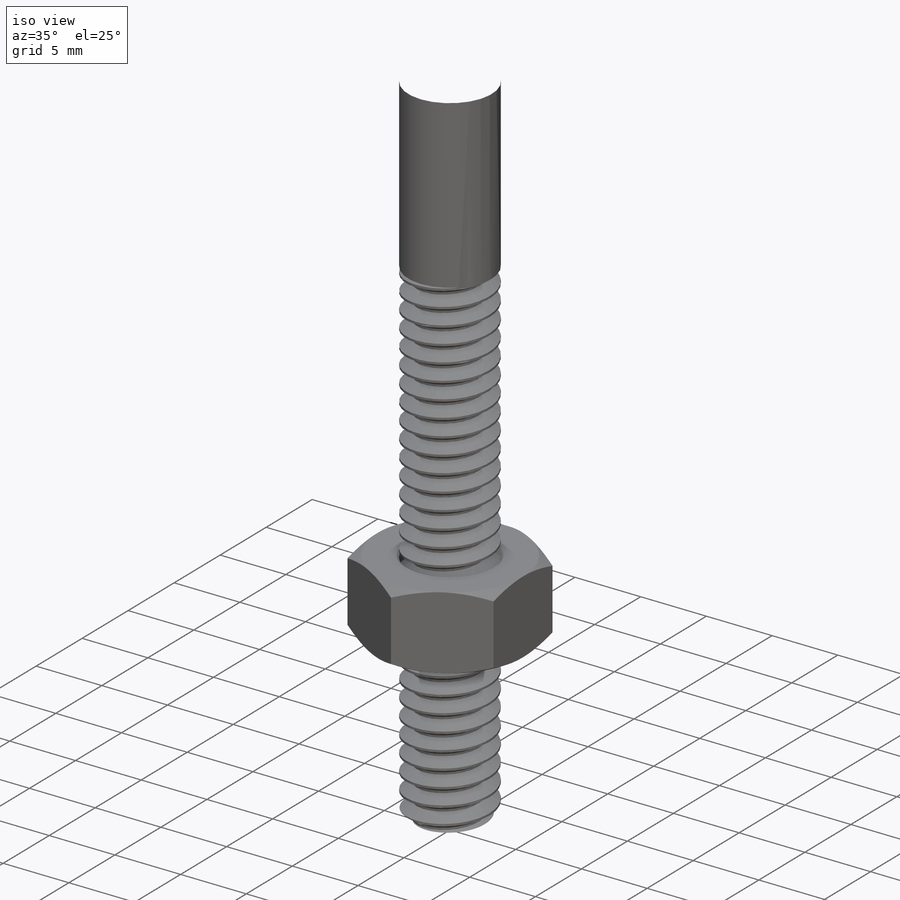
[diagram: iso view]
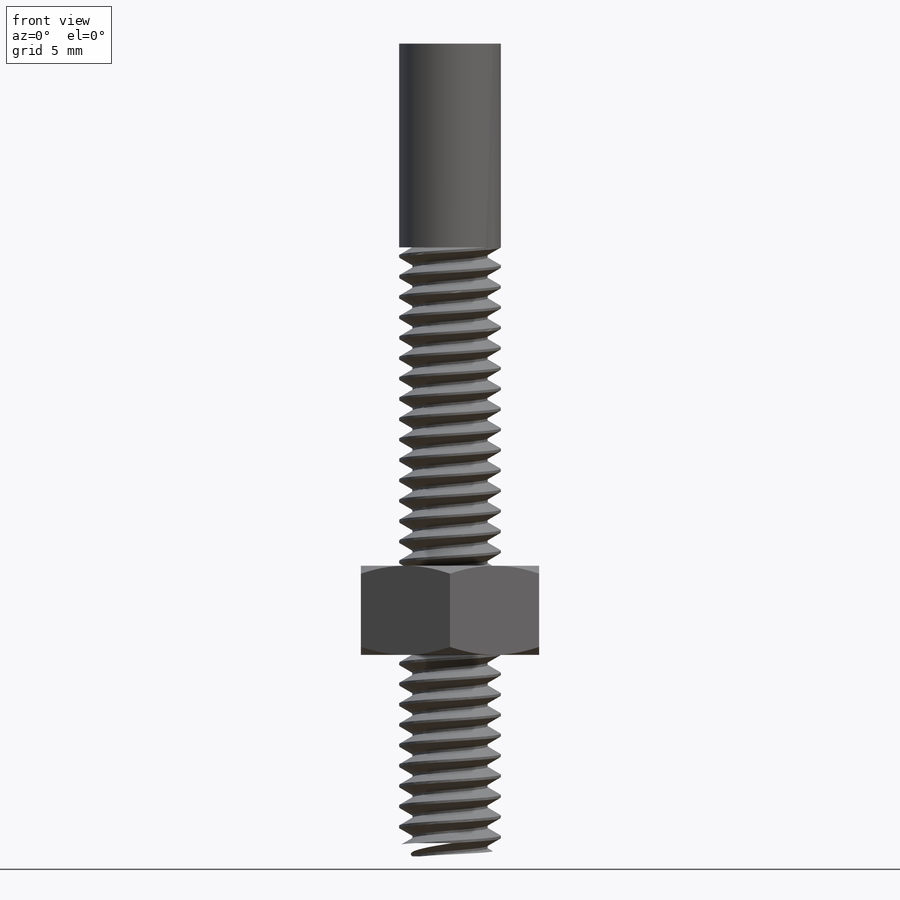
[diagram: front view]
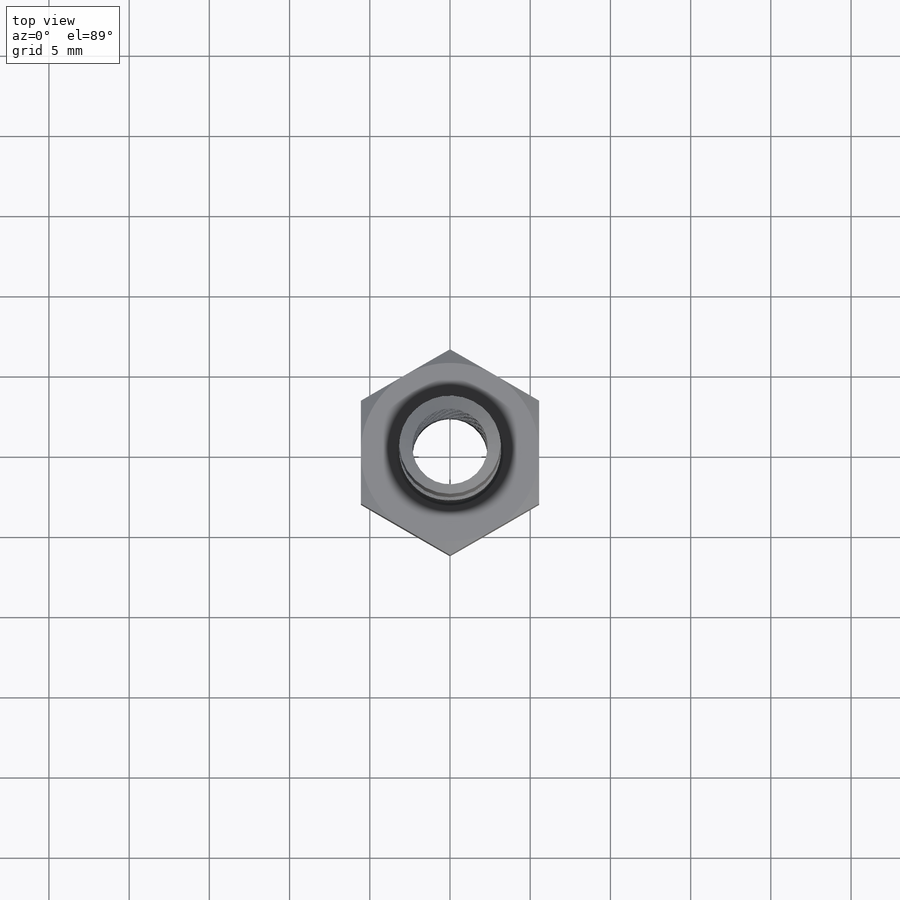
[diagram: top view]
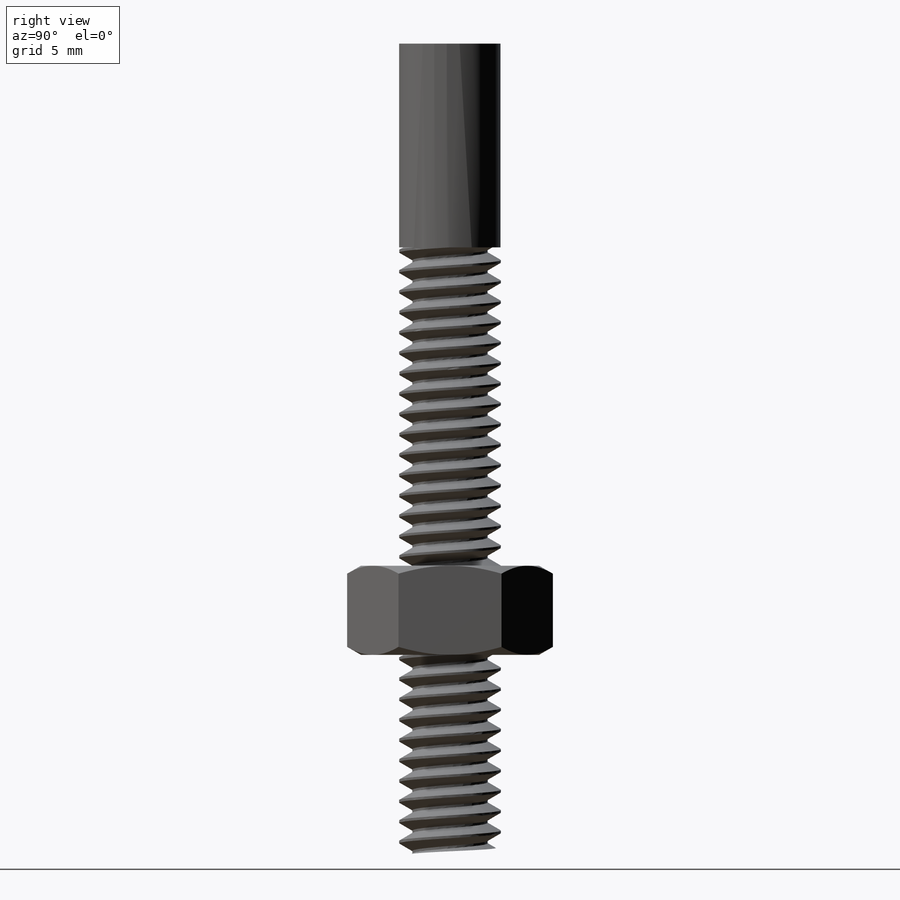
[diagram: right view]
SOLIDWORKS PART (.sldprt)
format: sldprt  version: not decoded by parser v0  size: 1,172,480 bytes
history: native  units: mm
features: sketch x11, extrude x3, revolve x2, material x1, helix x1, sweep x1, cut_extrude x1, fillet x1, plane x1, cut_revolve x1 (+14 scaffold rows collapsed)
feature tree (37):
  scaffold x14  (default folders/planes/origin — collapsed)
  material  "Plain Carbon Steel"
  sketch  "Sketch1"  dims[c1.D=~56.437722mm c1.A=6.35mm c1.Eye Dia.=12.7mm c1.L=~112.067972mm c1.H=~55.63025mm c2.L=~116.62918mm c2.D=~60.998931mm c2.Overall Lg.=79.375mm c2.Shank Lg.=101.6mm c2.OD=25.4mm c2.Thread Lg.=38.1mm c2.Thread OD=6.35mm c2.Nut Ht.=~5.55625mm c2.Nut Wd.=11.1125mm c2.Nut Offset=7.9375mm c2.D1=7.9375mm c2.D2=13.9065mm c2.D3=13.9065mm c3.D2=13.9065mm c3.D3=13.9065mm c4.D2=13.9065mm c4.Nut Offset=19.05mm c5.Nut Offset=12.7mm c5.Shoulder Dia.=11.1125mm c5.D1=101.6mm c5.D2=~95.171453mm c5.Shank Lg.=50.8mm c5.Thickness=3.175mm]
  sketch  "Sketch2"
  extrude  "Boss-Extrude1"  [1 undecoded]
  sketch  "Sketch3"  dims[D1=0.0mm]
  helix  "Helix/Spiral1"  Pitch=39.37mm
  sketch  "Sketch4"  dims[D1=1.27mm D2=~0.15875mm]
  sweep  "Cut-Sweep1"
  sketch  "Sketch5"
  cut_extrude  "Cut-Extrude1"  [1 undecoded]
  sketch  "Sketch6"
  revolve  "Revolve1"  Angle=360deg
  sketch  "Sketch7"  dims[D1=0.0mm]
  extrude  "Boss-Extrude2"  [1 undecoded]
  sketch  "Sketch8"  dims[D1=~3.96875mm]
  revolve  "Revolve2"  Angle=360deg
  fillet  "Fillet1"  Radius=0.79375mm
  plane  "Plane1"
  sketch  "Sketch9"
  extrude  "Boss-Extrude3"  [1 undecoded]
  sketch  "Sketch10"  dims[c1.D1=~2.413766mm c2.D1=30.0deg c2.D2=0.4064mm c2.D3=~0.15875mm c2.D4=~4.833122mm c3.D4=45.0deg]
  cut_revolve  "Cut-Revolve1"  Angle=360deg
  sketch  "SketchX"  dims[D1=25.7175mm]
decode coverage: 12 of 21 modeling features carry decoded parameters
note: ~ marks probable driven/reference dimensions
note: 4 parameter values undecoded
summary: no parameter record found for 4 features
note: suppression state not decoded; provenance and decode notes live in map.json
